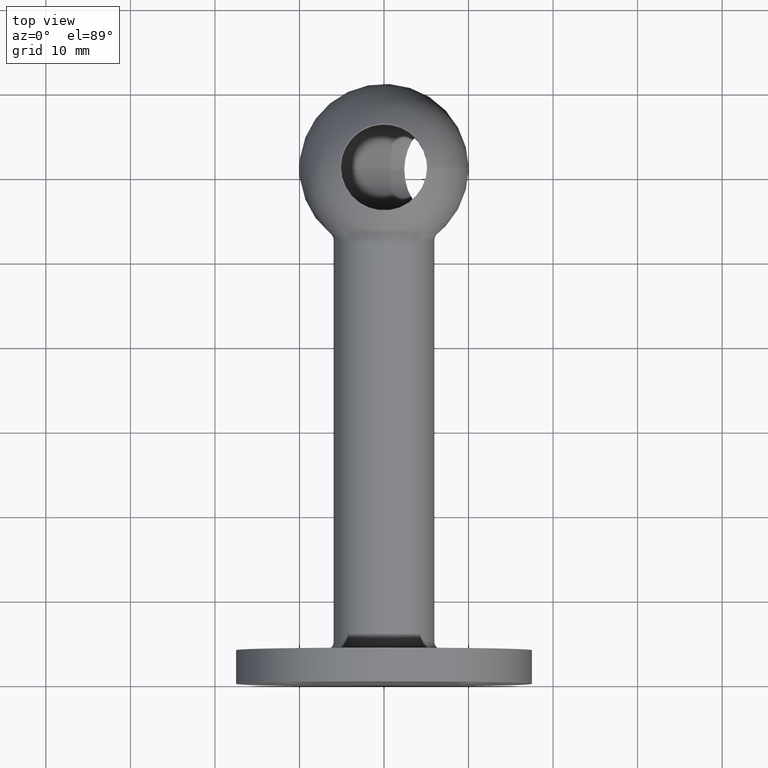
[diagram: clean part render]
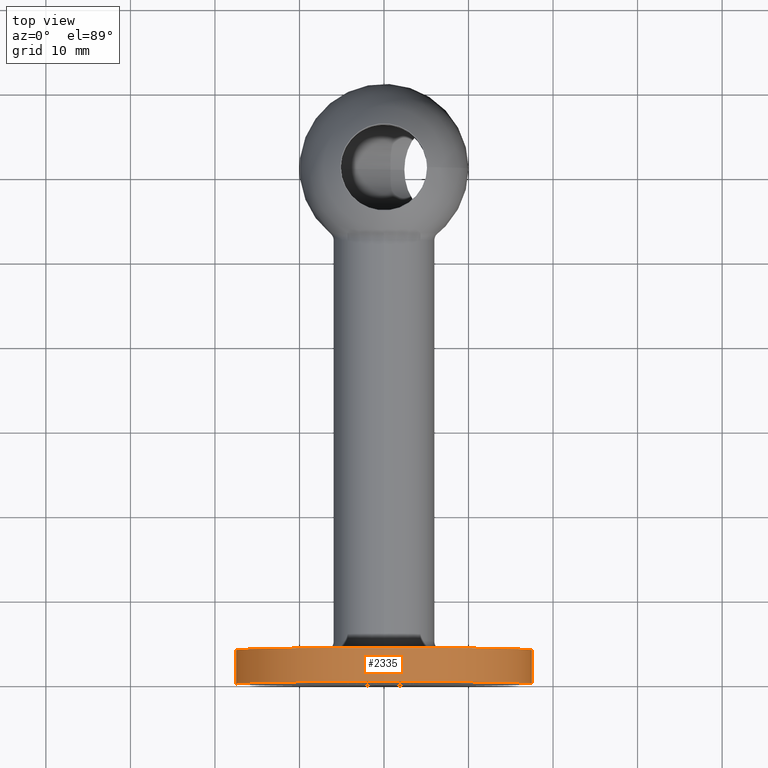
[diagram: same view with one face highlighted and labeled with its STEP entity id]
A machine part, top view. The second image highlights one B-rep face of the part: STEP entity #2335.
In plain terms, the highlighted cylindrical surface (bore or boss wall) has radius 17.5 mm, axis along (-0, -1, -0).
Its self-contained STEP definition (entity closure, byte-faithful):
#190 = CYLINDRICAL_SURFACE ( 'NONE', #6667, 17.50000000000000000 ) ;
#618 = DIRECTION ( 'NONE',  ( 0.000000000000000000, 0.000000000000000000, 1.000000000000000000 ) ) ;
#821 = CARTESIAN_POINT ( 'NONE',  ( 0.000000000000000000, 4.000000000000000000, 0.000000000000000000 ) ) ;
#879 = EDGE_LOOP ( 'NONE', ( #2121 ) ) ;
#2121 = ORIENTED_EDGE ( 'NONE', *, *, #9820, .F. ) ;
#2300 = DIRECTION ( 'NONE',  ( -0.000000000000000000, -1.000000000000000000, -0.000000000000000000 ) ) ;
#2335 = ADVANCED_FACE ( 'NONE', ( #4709, #5765 ), #190, .T. ) ;
#3017 = ORIENTED_EDGE ( 'NONE', *, *, #11027, .T. ) ;
#3341 = CIRCLE ( 'NONE', #8717, 17.50000000000000000 ) ;
#3501 = DIRECTION ( 'NONE',  ( 0.000000000000000000, 1.000000000000000000, 0.000000000000000000 ) ) ;
#3566 = AXIS2_PLACEMENT_3D ( 'NONE', #821, #6938, #8710 ) ;
#4709 = FACE_OUTER_BOUND ( 'NONE', #879, .T. ) ;
#5255 = CARTESIAN_POINT ( 'NONE',  ( 0.000000000000000000, 4.000000000000000000, 17.50000000000000000 ) ) ;
#5724 = CIRCLE ( 'NONE', #3566, 17.50000000000000000 ) ;
#5765 = FACE_OUTER_BOUND ( 'NONE', #12405, .T. ) ;
#6667 = AXIS2_PLACEMENT_3D ( 'NONE', #6873, #2300, #10405 ) ;
#6873 = CARTESIAN_POINT ( 'NONE',  ( 0.000000000000000000, 4.000000000000000000, 0.000000000000000000 ) ) ;
#6938 = DIRECTION ( 'NONE',  ( 0.000000000000000000, 1.000000000000000000, 0.000000000000000000 ) ) ;
#7922 = VERTEX_POINT ( 'NONE', #12046 ) ;
#8710 = DIRECTION ( 'NONE',  ( 0.000000000000000000, 0.000000000000000000, 1.000000000000000000 ) ) ;
#8717 = AXIS2_PLACEMENT_3D ( 'NONE', #9285, #3501, #618 ) ;
#9285 = CARTESIAN_POINT ( 'NONE',  ( 0.000000000000000000, 0.000000000000000000, 0.000000000000000000 ) ) ;
#9820 = EDGE_CURVE ( 'NONE', #11961, #11961, #5724, .T. ) ;
#10405 = DIRECTION ( 'NONE',  ( 0.000000000000000000, 0.000000000000000000, -1.000000000000000000 ) ) ;
#11027 = EDGE_CURVE ( 'NONE', #7922, #7922, #3341, .T. ) ;
#11961 = VERTEX_POINT ( 'NONE', #5255 ) ;
#12046 = CARTESIAN_POINT ( 'NONE',  ( 0.000000000000000000, 0.000000000000000000, 17.50000000000000000 ) ) ;
#12405 = EDGE_LOOP ( 'NONE', ( #3017 ) ) ;